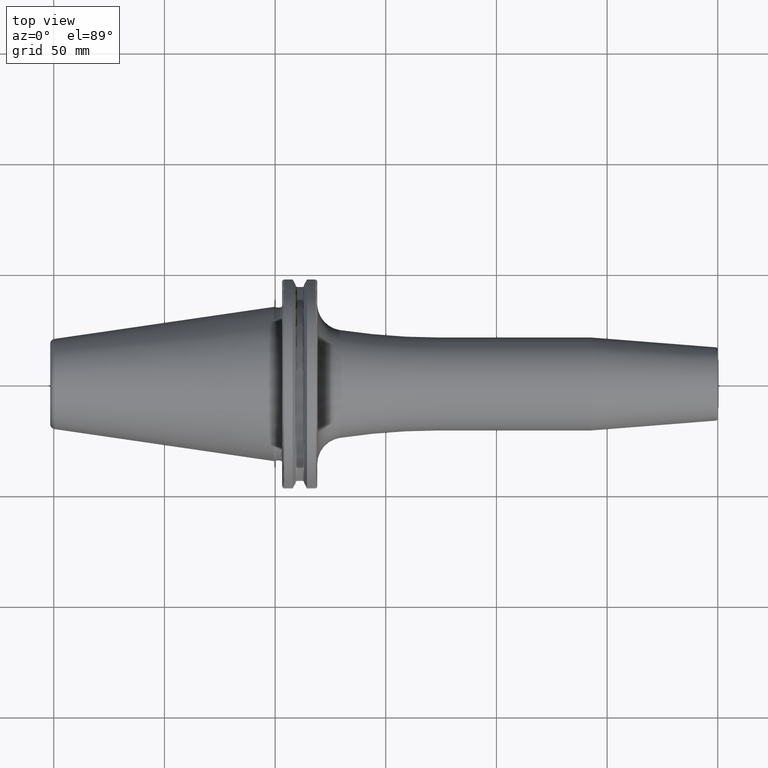
[diagram: clean part render]
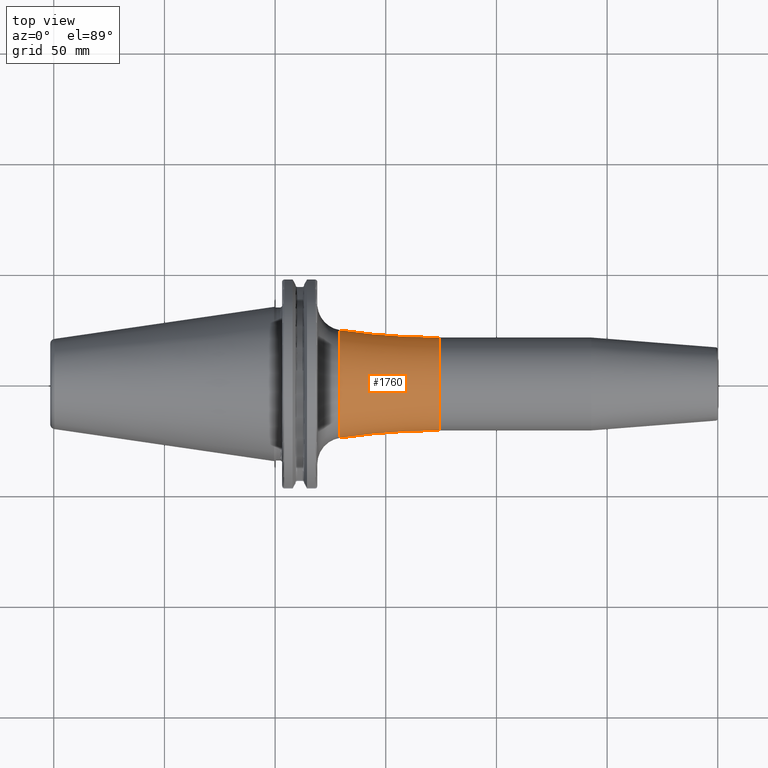
[diagram: same view with one face highlighted and labeled with its STEP entity id]
A machine part, top view. The second image highlights one B-rep face of the part: STEP entity #1760.
In plain terms, the highlighted toroidal blend (fillet) surface has major radius 321 mm and minor (blend) radius 300 mm.
Its self-contained STEP definition (entity closure, byte-faithful):
#196=CARTESIAN_POINT('',(2.925833333333E1,0.E0,0.E0));
#197=DIRECTION('',(1.E0,0.E0,0.E0));
#198=DIRECTION('',(0.E0,1.E0,0.E0));
#199=AXIS2_PLACEMENT_3D('',#196,#197,#198);
#206=CARTESIAN_POINT('',(7.405E1,-3.21E2,-7.862232450526E-14));
#207=DIRECTION('',(0.E0,0.E0,1.E0));
#208=DIRECTION('',(0.E0,1.E0,0.E0));
#209=AXIS2_PLACEMENT_3D('',#206,#207,#208);
#211=CARTESIAN_POINT('',(7.405E1,3.21E2,3.931116225263E-14));
#212=DIRECTION('',(0.E0,0.E0,-1.E0));
#213=DIRECTION('',(0.E0,-1.E0,0.E0));
#214=AXIS2_PLACEMENT_3D('',#211,#212,#213);
#234=CARTESIAN_POINT('',(7.405E1,0.E0,0.E0));
#235=DIRECTION('',(1.E0,0.E0,0.E0));
#236=DIRECTION('',(0.E0,1.E0,0.E0));
#237=AXIS2_PLACEMENT_3D('',#234,#235,#236);
#1490=CARTESIAN_POINT('',(7.405E1,2.1E1,0.E0));
#1491=CARTESIAN_POINT('',(7.405E1,-2.1E1,0.E0));
#1492=VERTEX_POINT('',#1490);
#1493=VERTEX_POINT('',#1491);
#1498=CARTESIAN_POINT('',(2.925833333333E1,-2.436266823405E1,0.E0));
#1499=CARTESIAN_POINT('',(2.925833333333E1,2.436266823405E1,0.E0));
#1500=VERTEX_POINT('',#1498);
#1501=VERTEX_POINT('',#1499);
#1746=CARTESIAN_POINT('',(7.405E1,0.E0,0.E0));
#1747=DIRECTION('',(1.E0,0.E0,0.E0));
#1748=DIRECTION('',(0.E0,-1.E0,0.E0));
#1749=AXIS2_PLACEMENT_3D('',#1746,#1747,#1748);
#1750=TOROIDAL_SURFACE('',#1749,3.21E2,3.E2);
#1751=ORIENTED_EDGE('',*,*,#1737,.F.);
#1753=ORIENTED_EDGE('',*,*,#1752,.F.);
#1755=ORIENTED_EDGE('',*,*,#1754,.T.);
#1757=ORIENTED_EDGE('',*,*,#1756,.T.);
#1758=EDGE_LOOP('',(#1751,#1753,#1755,#1757));
#1759=FACE_OUTER_BOUND('',#1758,.F.);
#1760=ADVANCED_FACE('',(#1759),#1750,.F.);
#200=CIRCLE('',#199,2.436266823405E1);
#210=CIRCLE('',#209,3.E2);
#215=CIRCLE('',#214,3.E2);
#238=CIRCLE('',#237,2.1E1);
#1737=EDGE_CURVE('',#1501,#1500,#200,.T.);
#1752=EDGE_CURVE('',#1492,#1501,#215,.T.);
#1754=EDGE_CURVE('',#1492,#1493,#238,.T.);
#1756=EDGE_CURVE('',#1493,#1500,#210,.T.);